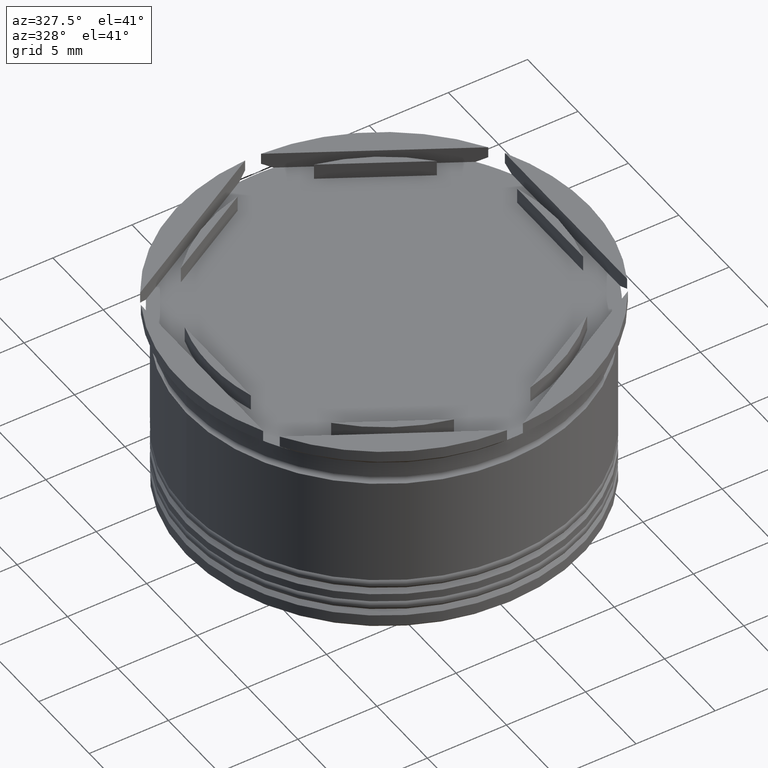
[diagram: clean part render]
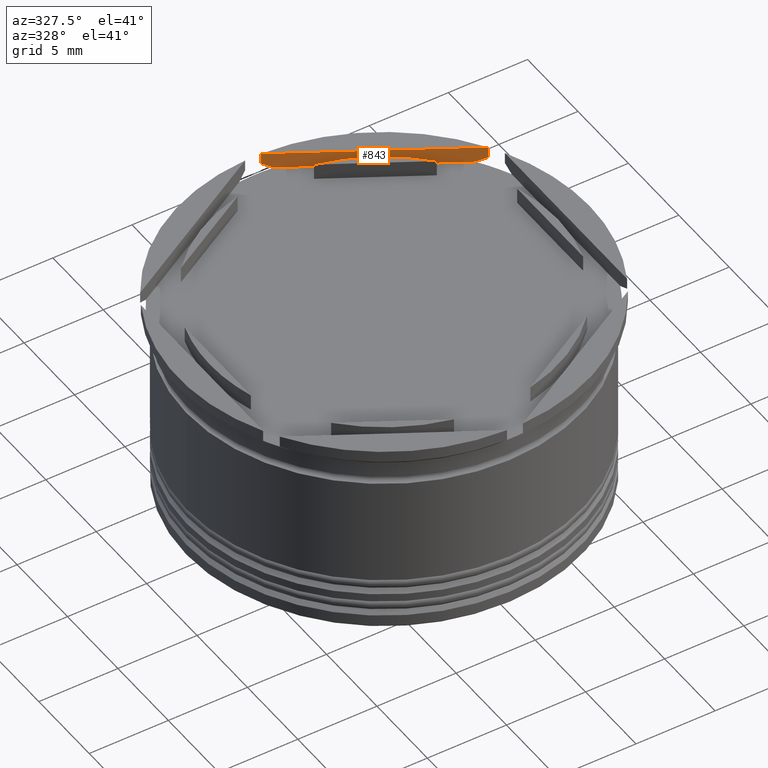
[diagram: same view with one face highlighted and labeled with its STEP entity id]
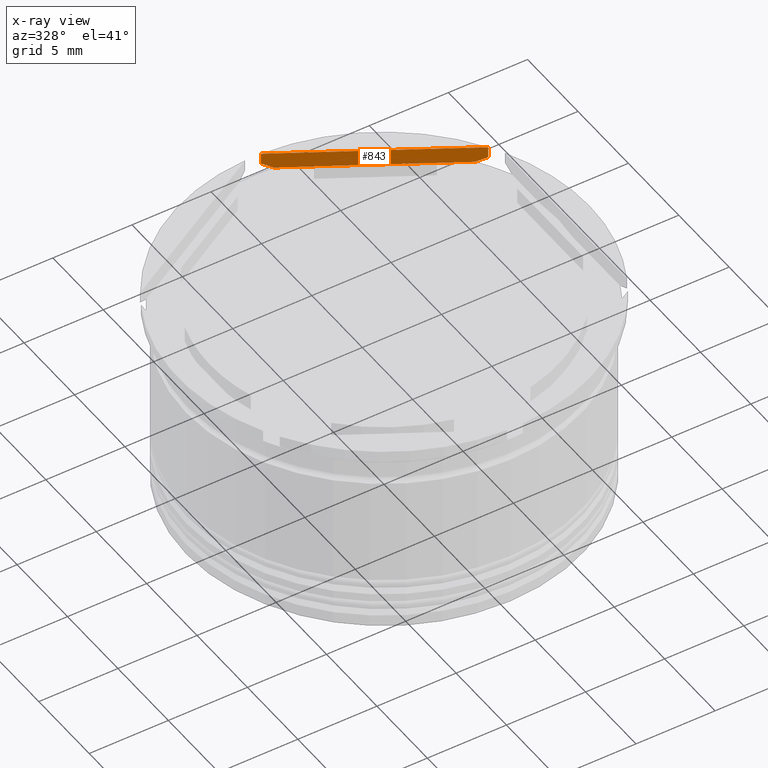
[diagram: x-ray of the same camera — body ghosted, the highlighted face saturated]
A machine part, auxiliary view. The second image highlights one B-rep face of the part: STEP entity #843.
The next image is the same camera in x-ray: the body ghosted, the highlighted face saturated — about 0% of this face is hidden behind the body in this view.
In plain terms, the highlighted planar face has unit normal (0.5, 0.866, 0).
Its self-contained STEP definition (entity closure, byte-faithful):
#10 = EDGE_LOOP ( 'NONE', ( #1021, #499, #537, #539, #209, #1274 ) ) ;
#41 = CARTESIAN_POINT ( 'NONE',  ( 10.41690475583120801, 7.264853426459545460, -1.000000000000000000 ) ) ;
#193 = DIRECTION ( 'NONE',  ( 0.000000000000000000, 0.000000000000000000, -1.000000000000000000 ) ) ;
#208 = B_SPLINE_CURVE_WITH_KNOTS ( 'NONE', 3,
 ( #778, #1638, #1286, #1843 ),
 .UNSPECIFIED., .F., .F.,
 ( 4, 4 ),
 ( 0.01167327952409322363, 0.01241052937690801175 ),
 .UNSPECIFIED. ) ;
#209 = ORIENTED_EDGE ( 'NONE', *, *, #1720, .T. ) ;
#327 = B_SPLINE_CURVE_WITH_KNOTS ( 'NONE', 3,
 ( #1691, #394, #731, #1096 ),
 .UNSPECIFIED., .F., .F.,
 ( 4, 4 ),
 ( 0.02350201055305046680, 0.02423821957421442436 ),
 .UNSPECIFIED. ) ;
#394 = CARTESIAN_POINT ( 'NONE',  ( 10.61336664755139658, 7.151426100389393525, -0.9037407940360669967 ) ) ;
#499 = ORIENTED_EDGE ( 'NONE', *, *, #2043, .T. ) ;
#502 = DIRECTION ( 'NONE',  ( -0.8660254037844387076, 0.4999999999999997780, 0.000000000000000000 ) ) ;
#537 = ORIENTED_EDGE ( 'NONE', *, *, #2373, .F. ) ;
#539 = ORIENTED_EDGE ( 'NONE', *, *, #2058, .T. ) ;
#593 = CARTESIAN_POINT ( 'NONE',  ( 11.00000000000000355, 6.928203230275501667, 0.000000000000000000 ) ) ;
#657 = DIRECTION ( 'NONE',  ( 0.4999999999999998335, 0.8660254037844388186, 0.000000000000000000 ) ) ;
#731 = CARTESIAN_POINT ( 'NONE',  ( 10.80764056646915883, 7.039262001005701208, -0.8035781565166079110 ) ) ;
#756 = VECTOR ( 'NONE', #193, 1000.000000000000000 ) ;
#778 = CARTESIAN_POINT ( 'NONE',  ( 0.4999999999999911182, 12.99038105676657828, -0.7000000000000021760 ) ) ;
#821 = LINE ( 'NONE', #593, #994 ) ;
#843 = ADVANCED_FACE ( 'NONE', ( #1222 ), #844, .F. ) ;
#844 = PLANE ( 'NONE',  #2297 ) ;
#921 = VERTEX_POINT ( 'NONE', #1757 ) ;
#994 = VECTOR ( 'NONE', #1154, 1000.000000000000000 ) ;
#1021 = ORIENTED_EDGE ( 'NONE', *, *, #1269, .T. ) ;
#1096 = CARTESIAN_POINT ( 'NONE',  ( 11.00000000000000000, 6.928203230275506108, -0.7000000000000027311 ) ) ;
#1132 = EDGE_CURVE ( 'NONE', #1161, #1147, #1749, .T. ) ;
#1146 = VECTOR ( 'NONE', #2147, 1000.000000000000227 ) ;
#1147 = VERTEX_POINT ( 'NONE', #1587 ) ;
#1154 = DIRECTION ( 'NONE',  ( -0.000000000000000000, -0.000000000000000000, 1.000000000000000000 ) ) ;
#1161 = VERTEX_POINT ( 'NONE', #2158 ) ;
#1222 = FACE_OUTER_BOUND ( 'NONE', #10, .T. ) ;
#1269 = EDGE_CURVE ( 'NONE', #1147, #1964, #2000, .T. ) ;
#1274 = ORIENTED_EDGE ( 'NONE', *, *, #1132, .T. ) ;
#1286 = CARTESIAN_POINT ( 'NONE',  ( 0.8872787262681899323, 12.76678557990421758, -0.9040570038151654053 ) ) ;
#1418 = LINE ( 'NONE', #1995, #2185 ) ;
#1438 = VERTEX_POINT ( 'NONE', #2239 ) ;
#1587 = CARTESIAN_POINT ( 'NONE',  ( 0.4999999999999908962, 12.99038105676657651, 0.000000000000000000 ) ) ;
#1638 = CARTESIAN_POINT ( 'NONE',  ( 0.6929677678669896590, 12.87897106404364500, -0.8039057211591552621 ) ) ;
#1691 = CARTESIAN_POINT ( 'NONE',  ( 10.41690475583120801, 7.264853426459545460, -1.000000000000000000 ) ) ;
#1720 = EDGE_CURVE ( 'NONE', #1438, #1161, #821, .T. ) ;
#1749 = LINE ( 'NONE', #1970, #1146 ) ;
#1757 = CARTESIAN_POINT ( 'NONE',  ( 1.083095244168780669, 12.65373086058253449, -1.000000000000000000 ) ) ;
#1843 = CARTESIAN_POINT ( 'NONE',  ( 1.083095244168780669, 12.65373086058253449, -1.000000000000000000 ) ) ;
#1964 = VERTEX_POINT ( 'NONE', #2372 ) ;
#1970 = CARTESIAN_POINT ( 'NONE',  ( 11.50000000000000000, 6.639528095680693021, 0.000000000000000000 ) ) ;
#1995 = CARTESIAN_POINT ( 'NONE',  ( 11.50000000000000000, 6.639528095680693021, -1.000000000000000000 ) ) ;
#2000 = LINE ( 'NONE', #2353, #756 ) ;
#2043 = EDGE_CURVE ( 'NONE', #1964, #921, #208, .T. ) ;
#2058 = EDGE_CURVE ( 'NONE', #2090, #1438, #327, .T. ) ;
#2090 = VERTEX_POINT ( 'NONE', #41 ) ;
#2109 = DIRECTION ( 'NONE',  ( -0.8660254037844387076, 0.4999999999999997780, 0.000000000000000000 ) ) ;
#2131 = CARTESIAN_POINT ( 'NONE',  ( 11.50000000000000000, 6.639528095680693021, -1.000000000000000000 ) ) ;
#2147 = DIRECTION ( 'NONE',  ( -0.8660254037844387076, 0.4999999999999997780, 0.000000000000000000 ) ) ;
#2158 = CARTESIAN_POINT ( 'NONE',  ( 11.00000000000000000, 6.928203230275504332, 0.000000000000000000 ) ) ;
#2185 = VECTOR ( 'NONE', #502, 1000.000000000000227 ) ;
#2239 = CARTESIAN_POINT ( 'NONE',  ( 11.00000000000000000, 6.928203230275506108, -0.7000000000000027311 ) ) ;
#2297 = AXIS2_PLACEMENT_3D ( 'NONE', #2131, #657, #2109 ) ;
#2353 = CARTESIAN_POINT ( 'NONE',  ( 0.4999999999999865663, 12.99038105676658006, 0.000000000000000000 ) ) ;
#2372 = CARTESIAN_POINT ( 'NONE',  ( 0.4999999999999911182, 12.99038105676657828, -0.7000000000000021760 ) ) ;
#2373 = EDGE_CURVE ( 'NONE', #2090, #921, #1418, .T. ) ;